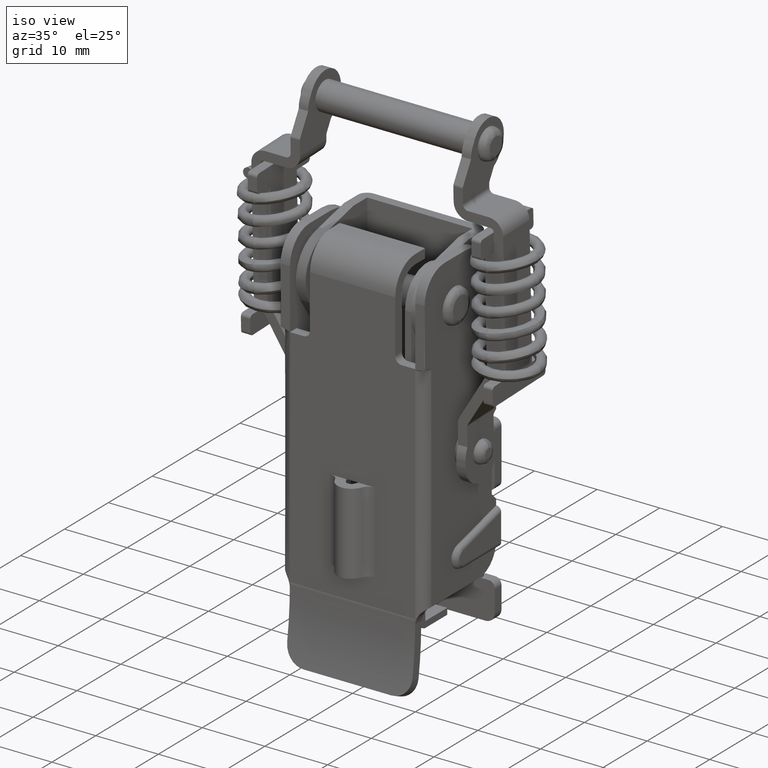
[diagram: clean part render]
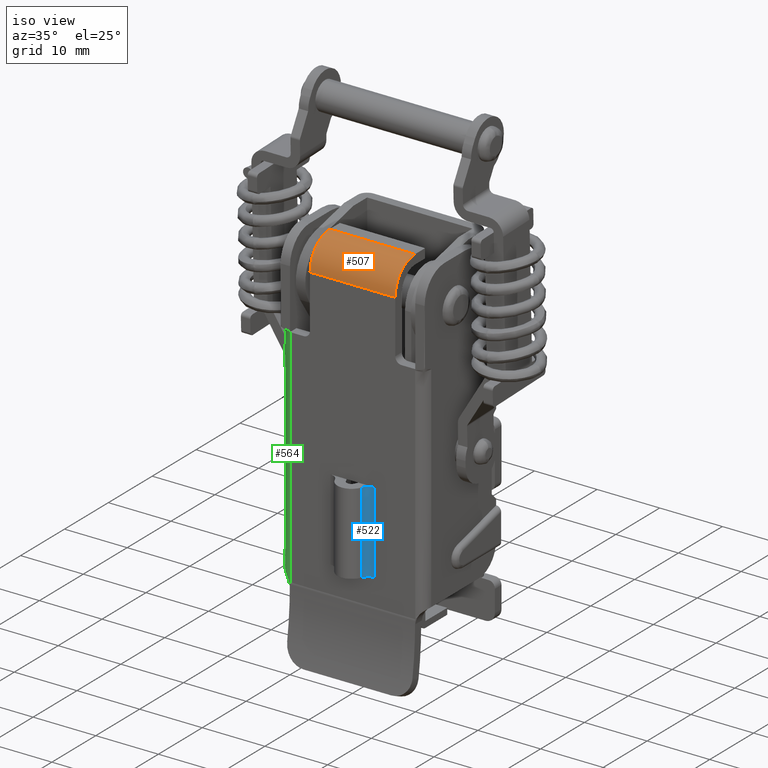
[diagram: same view with three faces highlighted in distinct colors, each labeled with its STEP entity id]
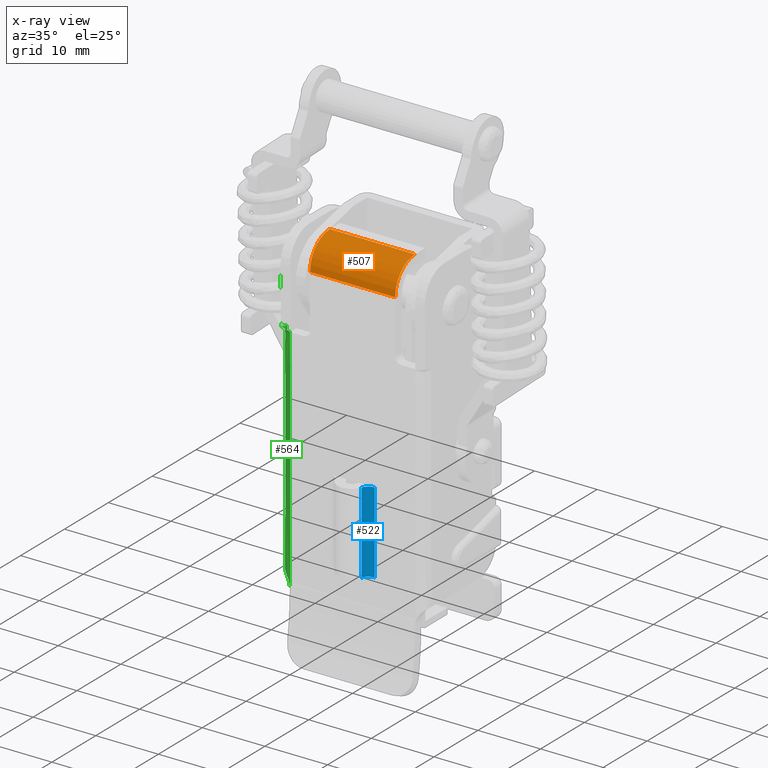
[diagram: x-ray of the same camera — body ghosted, the three highlighted faces saturated]
A machine part, iso view with three faces highlighted in distinct colors.
The next image is the same camera in x-ray (body ghosted, the three faces saturated) — at least one of them is partly hidden behind the body in this view.
Their STEP definitions:

[orange] entity #507 — the highlighted cylindrical surface (edge-blend (fillet) strip) has radius 4.5 mm, axis along (1, 0, 0).
#507=ADVANCED_FACE('',(#3092),#3091,.T.);
#3091=CYLINDRICAL_SURFACE('',#6275,4.50000000000E+00);
#3092=FACE_OUTER_BOUND('',#6276,.T.);
#6272=CARTESIAN_POINT('',(9.93200000000E+02,4.50000000000E+00,2.40000000000E+01));
#6273=DIRECTION('',(1.00000000000E+00,-0.00000000000E+00,-0.00000000000E+00));
#6274=DIRECTION('',(-0.00000000000E+00,-0.00000000000E+00,-1.00000000000E+00));
#6275=AXIS2_PLACEMENT_3D('',#6272,#6273,#6274);
#6276=EDGE_LOOP('',(#11036,#11037,#11038,#11039));
#11036=ORIENTED_EDGE('',*,*,#12525,.F.);
#11037=ORIENTED_EDGE('',*,*,#12632,.F.);
#11038=ORIENTED_EDGE('',*,*,#12522,.T.);
#11039=ORIENTED_EDGE('',*,*,#12633,.T.);
#12522=EDGE_CURVE('',#17124,#17117,#17125,.T.);
#12525=EDGE_CURVE('',#17138,#17145,#17146,.T.);
#12632=EDGE_CURVE('',#17124,#17138,#17869,.T.);
#12633=EDGE_CURVE('',#17117,#17145,#17875,.T.);
#17117=VERTEX_POINT('',#22862);
#17124=VERTEX_POINT('',#22866);
#17125=CIRCLE('',#22870,4.50000000000E+00);
#17138=VERTEX_POINT('',#22875);
#17145=VERTEX_POINT('',#22879);
#17146=CIRCLE('',#22883,4.50000000000E+00);
#17869=LINE('',#23334,#23335);
#17875=LINE('',#23337,#23338);
#22862=CARTESIAN_POINT('',(6.80000000000E+00,4.50000000000E+00,2.85000000000E+01));
#22866=CARTESIAN_POINT('',(6.80000000000E+00,0.00000000000E+00,2.40000000000E+01));
#22867=CARTESIAN_POINT('',(6.80000000000E+00,4.50000000000E+00,2.40000000000E+01));
#22868=DIRECTION('',(-1.00000000000E+00,0.00000000000E+00,0.00000000000E+00));
#22869=DIRECTION('',(-0.00000000000E+00,-0.00000000000E+00,-1.00000000000E+00));
#22870=AXIS2_PLACEMENT_3D('',#22867,#22868,#22869);
#22875=CARTESIAN_POINT('',(-6.80000000000E+00,0.00000000000E+00,2.40000000000E+01));
#22879=CARTESIAN_POINT('',(-6.80000000000E+00,4.50000000000E+00,2.85000000000E+01));
#22880=CARTESIAN_POINT('',(-6.80000000000E+00,4.50000000000E+00,2.40000000000E+01));
#22881=DIRECTION('',(-1.00000000000E+00,0.00000000000E+00,0.00000000000E+00));
#22882=DIRECTION('',(-0.00000000000E+00,-0.00000000000E+00,-1.00000000000E+00));
#22883=AXIS2_PLACEMENT_3D('',#22880,#22881,#22882);
#23334=CARTESIAN_POINT('',(6.80000000000E+00,0.00000000000E+00,2.40000000000E+01));
#23335=VECTOR('',#23336,1.36000000000E+01);
#23336=DIRECTION('',(-1.00000000000E+00,0.00000000000E+00,0.00000000000E+00));
#23337=CARTESIAN_POINT('',(6.80000000000E+00,4.50000000000E+00,2.85000000000E+01));
#23338=VECTOR('',#23339,1.36000000000E+01);
#23339=DIRECTION('',(-1.00000000000E+00,0.00000000000E+00,0.00000000000E+00));

[blue] entity #522 — the highlighted cylindrical surface (edge-blend (fillet) strip) has radius 1.5 mm, axis along (0, 0, 1).
#522=ADVANCED_FACE('',(#3242),#3241,.F.);
#3241=CYLINDRICAL_SURFACE('',#6350,1.50000000000E+00);
#3242=FACE_OUTER_BOUND('',#6351,.T.);
#6347=CARTESIAN_POINT('',(3.54436171969E+00,-1.50000000000E+00,9.82699992875E+02));
#6348=DIRECTION('',(-0.00000000000E+00,-0.00000000000E+00,1.00000000000E+00));
#6349=DIRECTION('',(1.00000000000E+00,-0.00000000000E+00,-0.00000000000E+00));
#6350=AXIS2_PLACEMENT_3D('',#6347,#6348,#6349);
#6351=EDGE_LOOP('',(#11102,#11103,#11104,#11105));
#11102=ORIENTED_EDGE('',*,*,#12652,.T.);
#11103=ORIENTED_EDGE('',*,*,#12653,.F.);
#11104=ORIENTED_EDGE('',*,*,#12654,.F.);
#11105=ORIENTED_EDGE('',*,*,#12655,.T.);
#12652=EDGE_CURVE('',#17996,#17997,#17998,.T.);
#12653=EDGE_CURVE('',#18004,#17997,#18005,.T.);
#12654=EDGE_CURVE('',#18011,#18004,#18012,.T.);
#12655=EDGE_CURVE('',#18011,#17996,#18018,.T.);
#17996=VERTEX_POINT('',#23405);
#17997=VERTEX_POINT('',#23406);
#17998=CIRCLE('',#23410,1.50000000000E+00);
#18004=VERTEX_POINT('',#23411);
#18005=LINE('',#23412,#23413);
#18011=VERTEX_POINT('',#23415);
#18012=CIRCLE('',#23419,1.50000000000E+00);
#18018=LINE('',#23420,#23421);
#23405=CARTESIAN_POINT('',(2.13132714706E+00,-9.96677740864E-01,-1.73000071250E+01));
#23406=CARTESIAN_POINT('',(3.54436171969E+00,0.00000000000E+00,-1.73000071250E+01));
#23407=CARTESIAN_POINT('',(3.54436171969E+00,-1.50000000000E+00,-1.73000071250E+01));
#23408=DIRECTION('',(0.00000000000E+00,0.00000000000E+00,-1.00000000000E+00));
#23409=DIRECTION('',(1.00000000000E+00,-0.00000000000E+00,-0.00000000000E+00));
#23410=AXIS2_PLACEMENT_3D('',#23407,#23408,#23409);
#23411=CARTESIAN_POINT('',(3.54436171969E+00,0.00000000000E+00,-4.30000712500E+00));
#23412=CARTESIAN_POINT('',(3.54436171969E+00,0.00000000000E+00,-4.30000712500E+00));
#23413=VECTOR('',#23414,1.30000000000E+01);
#23414=DIRECTION('',(0.00000000000E+00,0.00000000000E+00,-1.00000000000E+00));
#23415=CARTESIAN_POINT('',(2.13132714706E+00,-9.96677740864E-01,-4.30000712500E+00));
#23416=CARTESIAN_POINT('',(3.54436171969E+00,-1.50000000000E+00,-4.30000712500E+00));
#23417=DIRECTION('',(0.00000000000E+00,0.00000000000E+00,-1.00000000000E+00));
#23418=DIRECTION('',(1.00000000000E+00,-0.00000000000E+00,-0.00000000000E+00));
#23419=AXIS2_PLACEMENT_3D('',#23416,#23417,#23418);
#23420=CARTESIAN_POINT('',(2.13132714706E+00,-9.96677740864E-01,-4.30000712500E+00));
#23421=VECTOR('',#23422,1.30000000000E+01);
#23422=DIRECTION('',(0.00000000000E+00,0.00000000000E+00,-1.00000000000E+00));

[green] entity #564 — the highlighted face is a freeform B-spline surface patch.
#564=ADVANCED_FACE('',(#3665),#3664,.T.);
#3664=( BOUNDED_SURFACE() B_SPLINE_SURFACE( 2,3,((#6591,#6592,#6593,#6594,#6595,#6596,#6597,#6598,#6599,#6600),(#6601,#6602,#6603,#6604,#6605,#6606,#6607,#6608,#6609,#6610),(#6611,#6612,#6613,#6614,#6615,#6616,#6617,#6618,#6619,#6620)), .UNSPECIFIED.,.F.,.F.,.F.) B_SPLINE_SURFACE_WITH_KNOTS((3,3),(4,3,3,4),(0.00000000000E+00,1.00000000000E+00),(-3.19160038332E-02,1.45261506958E-02,1.49372041678E-02,2.40000000000E-02), .UNSPECIFIED. ) GEOMETRIC_REPRESENTATION_ITEM() RATIONAL_B_SPLINE_SURFACE(((1.00000000000E+00,1.00000000000E+00,1.00000000000E+00,1.00000000000E+00,1.00000000000E+00,1.00000000000E+00,1.00000000000E+00,1.00000000000E+00,1.00000000000E+00,1.00000000000E+00),(7.07106781187E-01,7.07106781187E-01,7.07106781187E-01,7.07106781187E-01,7.07106781187E-01,7.07106781187E-01,7.07106781187E-01,7.07106781187E-01,7.07106781187E-01,7.07106781187E-01),(1.00000000000E+00,1.00000000000E+00,1.00000000000E+00,1.00000000000E+00,1.00000000000E+00,1.00000000000E+00,1.00000000000E+00,1.00000000000E+00,1.00000000000E+00,1.00000000000E+00))) REPRESENTATION_ITEM('') SURFACE() );
#3665=FACE_OUTER_BOUND('',#6621,.T.);
#6591=CARTESIAN_POINT('',(-1.15000000000E+01,1.50000000000E+00,-3.19160038332E+01));
#6592=CARTESIAN_POINT('',(-1.15000000000E+01,1.50000000000E+00,-1.64352856569E+01));
#6593=CARTESIAN_POINT('',(-1.15000000000E+01,1.50000000000E+00,-9.54567480575E-01));
#6594=CARTESIAN_POINT('',(-1.15000000000E+01,1.50000000000E+00,1.45261506958E+01));
#6595=CARTESIAN_POINT('',(-1.15000000000E+01,1.50000000000E+00,1.46631685198E+01));
#6596=CARTESIAN_POINT('',(-1.15000000000E+01,1.01511871464E-01,1.48001863438E+01));
#6597=CARTESIAN_POINT('',(-1.15000000000E+01,1.00000000000E-01,1.49372041678E+01));
#6598=CARTESIAN_POINT('',(-1.15000000000E+01,6.66666666667E-02,1.79581361119E+01));
#6599=CARTESIAN_POINT('',(-1.15000000000E+01,3.33333333333E-02,2.09790680559E+01));
#6600=CARTESIAN_POINT('',(-1.15000000000E+01,0.00000000000E+00,2.40000000000E+01));
#6601=CARTESIAN_POINT('',(-1.15000000000E+01,0.00000000000E+00,-3.19160038332E+01));
#6602=CARTESIAN_POINT('',(-1.15000000000E+01,0.00000000000E+00,-1.64352856569E+01));
#6603=CARTESIAN_POINT('',(-1.15000000000E+01,0.00000000000E+00,-9.54567480575E-01));
#6604=CARTESIAN_POINT('',(-1.15000000000E+01,0.00000000000E+00,1.45261506958E+01));
#6605=CARTESIAN_POINT('',(-1.15000000000E+01,0.00000000000E+00,1.46631685198E+01));
#6606=CARTESIAN_POINT('',(-1.15000000000E+01,0.00000000000E+00,1.48001863438E+01));
#6607=CARTESIAN_POINT('',(-1.15000000000E+01,0.00000000000E+00,1.49372041678E+01));
#6608=CARTESIAN_POINT('',(-1.15000000000E+01,0.00000000000E+00,1.79581361119E+01));
#6609=CARTESIAN_POINT('',(-1.15000000000E+01,0.00000000000E+00,2.09790680559E+01));
#6610=CARTESIAN_POINT('',(-1.15000000000E+01,0.00000000000E+00,2.40000000000E+01));
#6611=CARTESIAN_POINT('',(-1.00000000000E+01,0.00000000000E+00,-3.19160038332E+01));
#6612=CARTESIAN_POINT('',(-1.00000000000E+01,0.00000000000E+00,-1.64352856569E+01));
#6613=CARTESIAN_POINT('',(-1.00000000000E+01,0.00000000000E+00,-9.54567480575E-01));
#6614=CARTESIAN_POINT('',(-1.00000000000E+01,0.00000000000E+00,1.45261506958E+01));
#6615=CARTESIAN_POINT('',(-1.00000000000E+01,0.00000000000E+00,1.46631685198E+01));
#6616=CARTESIAN_POINT('',(-1.13984881285E+01,0.00000000000E+00,1.48001863438E+01));
#6617=CARTESIAN_POINT('',(-1.14000000000E+01,0.00000000000E+00,1.49372041678E+01));
#6618=CARTESIAN_POINT('',(-1.14333333333E+01,0.00000000000E+00,1.79581361119E+01));
#6619=CARTESIAN_POINT('',(-1.14666666667E+01,0.00000000000E+00,2.09790680559E+01));
#6620=CARTESIAN_POINT('',(-1.15000000000E+01,0.00000000000E+00,2.40000000000E+01));
#6621=EDGE_LOOP('',(#11338,#11339,#11340,#11341,#11342,#11343));
#11338=ORIENTED_EDGE('',*,*,#12726,.F.);
#11339=ORIENTED_EDGE('',*,*,#12601,.F.);
#11340=ORIENTED_EDGE('',*,*,#12714,.F.);
#11341=ORIENTED_EDGE('',*,*,#12732,.T.);
#11342=ORIENTED_EDGE('',*,*,#12720,.T.);
#11343=ORIENTED_EDGE('',*,*,#12719,.F.);
#12601=EDGE_CURVE('',#17259,#17659,#17660,.T.);
#12714=EDGE_CURVE('',#18401,#17259,#18408,.T.);
#12719=EDGE_CURVE('',#17220,#18438,#18439,.T.);
#12720=EDGE_CURVE('',#18445,#18438,#18446,.T.);
#12726=EDGE_CURVE('',#17659,#17220,#18483,.T.);
#12732=EDGE_CURVE('',#18401,#18445,#18521,.T.);
#17220=VERTEX_POINT('',#22925);
#17259=VERTEX_POINT('',#22946);
#17659=VERTEX_POINT('',#23196);
#17660=(BOUNDED_CURVE() B_SPLINE_CURVE(3,(#23197,#23198,#23199,#23200,#23201,#23202,#23203,#23204,#23205,#23206),.UNSPECIFIED.,.F.,.F.) B_SPLINE_CURVE_WITH_KNOTS((4,3,3,4),(-2.00000071244E-02,1.45261506958E-02,1.49372041678E-02,2.40000000000E-02),.UNSPECIFIED.) CURVE() GEOMETRIC_REPRESENTATION_ITEM() RATIONAL_B_SPLINE_CURVE((1.00000000000E+00,1.00000000000E+00,1.00000000000E+00,1.00000000000E+00,1.00000000000E+00,1.00000000000E+00,1.00000000000E+00,1.00000000000E+00,1.00000000000E+00,1.00000000000E+00)) REPRESENTATION_ITEM('') );
#18401=VERTEX_POINT('',#23654);
#18408=(BOUNDED_CURVE() B_SPLINE_CURVE(3,(#23658,#23659,#23660,#23661,#23662,#23663,#23664,#23665,#23666,#23667,#23668,#23669,#23670,#23671,#23672,#23673,#23674,#23675),.UNSPECIFIED.,.F.,.F.) B_SPLINE_CURVE_WITH_KNOTS((4,2,2,2,2,2,2,2,4),(5.66045944389E-12,4.54648133104E-04,9.09296260548E-04,1.36394438799E-03,1.81859251544E-03,2.27324064288E-03,2.72788877032E-03,3.18253689777E-03,3.63718502521E-03),.UNSPECIFIED.) CURVE() GEOMETRIC_REPRESENTATION_ITEM() RATIONAL_B_SPLINE_CURVE((1.00000000000E+00,1.00000000000E+00,1.00000000000E+00,1.00000000000E+00,1.00000000000E+00,1.00000000000E+00,1.00000000000E+00,1.00000000000E+00,1.00000000000E+00,1.00000000000E+00,1.00000000000E+00,1.00000000000E+00,1.00000000000E+00,1.00000000000E+00,1.00000000000E+00,1.00000000000E+00,1.00000000000E+00,1.00000000000E+00)) REPRESENTATION_ITEM('') );
#18438=VERTEX_POINT('',#23688);
#18439=(BOUNDED_CURVE() B_SPLINE_CURVE(3,(#23689,#23690,#23691,#23692),.UNSPECIFIED.,.F.,.F.) B_SPLINE_CURVE_WITH_KNOTS((4,4),(-1.44999928750E-02,2.13717358923E-02),.UNSPECIFIED.) CURVE() GEOMETRIC_REPRESENTATION_ITEM() RATIONAL_B_SPLINE_CURVE((1.00000000000E+00,1.00000000000E+00,1.00000000000E+00,1.00000000000E+00)) REPRESENTATION_ITEM('') );
#18445=VERTEX_POINT('',#23693);
#18446=LINE('',#23694,#23695);
#18483=(BOUNDED_CURVE() B_SPLINE_CURVE(3,(#23720,#23721,#23722,#23723,#23724,#23725,#23726,#23727,#23728,#23729),.UNSPECIFIED.,.F.,.F.) B_SPLINE_CURVE_WITH_KNOTS((4,3,3,4),(-2.40000000000E-02,-1.49372041678E-02,-1.45261506958E-02,-1.44999928750E-02),.UNSPECIFIED.) CURVE() GEOMETRIC_REPRESENTATION_ITEM() RATIONAL_B_SPLINE_CURVE((1.00000000000E+00,1.00000000000E+00,1.00000000000E+00,1.00000000000E+00,1.00000000000E+00,1.00000000000E+00,1.00000000000E+00,1.00000000000E+00,1.00000000000E+00,1.00000000000E+00)) REPRESENTATION_ITEM('') );
#18521=LINE('',#23749,#23750);
#22925=CARTESIAN_POINT('',(-1.00000000000E+01,0.00000000000E+00,1.44999928750E+01));
#22946=CARTESIAN_POINT('',(-1.15000000005E+01,1.50000000000E+00,-2.00000071244E+01));
#23196=CARTESIAN_POINT('',(-1.15000000000E+01,0.00000000000E+00,2.40000000000E+01));
#23197=CARTESIAN_POINT('',(-1.15000000000E+01,1.50000000000E+00,-2.00000071244E+01));
#23198=CARTESIAN_POINT('',(-1.15000000000E+01,1.50000000000E+00,-8.49128785102E+00));
#23199=CARTESIAN_POINT('',(-1.15000000000E+01,1.50000000000E+00,3.01743142237E+00));
#23200=CARTESIAN_POINT('',(-1.15000000000E+01,1.50000000000E+00,1.45261506958E+01));
#23201=CARTESIAN_POINT('',(-1.15000000000E+01,1.50000000000E+00,1.46631685198E+01));
#23202=CARTESIAN_POINT('',(-1.15000000000E+01,1.01511871464E-01,1.48001863438E+01));
#23203=CARTESIAN_POINT('',(-1.15000000000E+01,1.00000000000E-01,1.49372041678E+01));
#23204=CARTESIAN_POINT('',(-1.15000000000E+01,6.66666666667E-02,1.79581361119E+01));
#23205=CARTESIAN_POINT('',(-1.15000000000E+01,3.33333333333E-02,2.09790680559E+01));
#23206=CARTESIAN_POINT('',(-1.15000000000E+01,0.00000000000E+00,2.40000000000E+01));
#23654=CARTESIAN_POINT('',(-1.00000000005E+01,0.00000000000E+00,-2.23187573171E+01));
#23658=CARTESIAN_POINT('',(-1.00000000005E+01,4.15004044577E-20,-2.23187573171E+01));
#23659=CARTESIAN_POINT('',(-1.00146277577E+01,-0.00000000000E+00,-2.21666807076E+01));
#23660=CARTESIAN_POINT('',(-1.00406646608E+01,8.92440058293E-05,-2.20171832674E+01));
#23661=CARTESIAN_POINT('',(-1.01150194401E+01,3.95306925653E-03,-2.17232694971E+01));
#23662=CARTESIAN_POINT('',(-1.01638325521E+01,7.78023365948E-03,-2.15778269511E+01));
#23663=CARTESIAN_POINT('',(-1.02818553177E+01,2.55107609478E-02,-2.12985496760E+01));
#23664=CARTESIAN_POINT('',(-1.03508749944E+01,3.93162768055E-02,-2.11646439854E+01));
#23665=CARTESIAN_POINT('',(-1.05078514703E+01,8.62117962607E-02,-2.09088720453E+01));
#23666=CARTESIAN_POINT('',(-1.05961701620E+01,1.19639533552E-01,-2.07871136557E+01));
#23667=CARTESIAN_POINT('',(-1.07809427443E+01,2.15110001017E-01,-2.05670196935E+01));
#23668=CARTESIAN_POINT('',(-1.08798241338E+01,2.78708457005E-01,-2.04660107040E+01));
#23669=CARTESIAN_POINT('',(-1.10699373701E+01,4.41284946942E-01,-2.02942213526E+01));
#23670=CARTESIAN_POINT('',(-1.11629395885E+01,5.42188347882E-01,-2.02216514527E+01));
#23671=CARTESIAN_POINT('',(-1.13208918857E+01,7.75378530682E-01,-2.01087709709E+01));
#23672=CARTESIAN_POINT('',(-1.13867180746E+01,9.08836175415E-01,-2.00674211098E+01));
#23673=CARTESIAN_POINT('',(-1.14762690120E+01,1.19489101928E+00,-2.00131564508E+01));
#23674=CARTESIAN_POINT('',(-1.15000000000E+01,1.34615136845E+00,-2.00000071247E+01));
#23675=CARTESIAN_POINT('',(-1.15000000000E+01,1.50000000000E+00,-2.00000071247E+01));
#23688=CARTESIAN_POINT('',(-1.00000000000E+01,1.73472347598E-15,-2.13717358923E+01));
#23689=CARTESIAN_POINT('',(-1.00000000000E+01,0.00000000000E+00,1.44999928750E+01));
#23690=CARTESIAN_POINT('',(-1.00000000000E+01,0.00000000000E+00,2.54274995257E+00));
#23691=CARTESIAN_POINT('',(-1.00000000000E+01,0.00000000000E+00,-9.41449296986E+00));
#23692=CARTESIAN_POINT('',(-1.00000000000E+01,0.00000000000E+00,-2.13717358923E+01));
#23693=CARTESIAN_POINT('',(-1.00000000000E+01,0.00000000000E+00,-2.15863260756E+01));
#23694=CARTESIAN_POINT('',(-1.00000000000E+01,0.00000000000E+00,-2.15863260756E+01));
#23695=VECTOR('',#23696,2.14590183313E-01);
#23696=DIRECTION('',(0.00000000000E+00,0.00000000000E+00,1.00000000000E+00));
#23720=CARTESIAN_POINT('',(-1.15000000000E+01,0.00000000000E+00,2.40000000000E+01));
#23721=CARTESIAN_POINT('',(-1.14666666667E+01,0.00000000000E+00,2.09790680559E+01));
#23722=CARTESIAN_POINT('',(-1.14333333333E+01,0.00000000000E+00,1.79581361119E+01));
#23723=CARTESIAN_POINT('',(-1.14000000000E+01,0.00000000000E+00,1.49372041678E+01));
#23724=CARTESIAN_POINT('',(-1.13984881285E+01,0.00000000000E+00,1.48001863438E+01));
#23725=CARTESIAN_POINT('',(-1.00000000000E+01,0.00000000000E+00,1.46631685198E+01));
#23726=CARTESIAN_POINT('',(-1.00000000000E+01,0.00000000000E+00,1.45261506958E+01));
#23727=CARTESIAN_POINT('',(-1.00000000000E+01,0.00000000000E+00,1.45174314222E+01));
#23728=CARTESIAN_POINT('',(-1.00000000000E+01,0.00000000000E+00,1.45087121486E+01));
#23729=CARTESIAN_POINT('',(-1.00000000000E+01,0.00000000000E+00,1.44999928750E+01));
#23749=CARTESIAN_POINT('',(-1.00000000000E+01,0.00000000000E+00,-2.23187573171E+01));
#23750=VECTOR('',#23751,7.32431241522E-01);
#23751=DIRECTION('',(0.00000000000E+00,0.00000000000E+00,1.00000000000E+00));